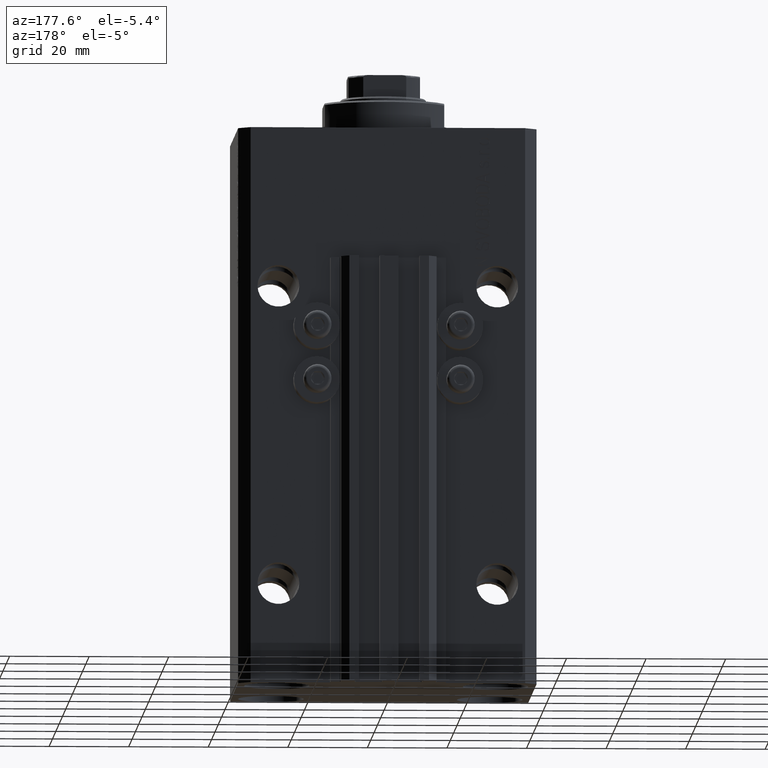
[diagram: clean part render]
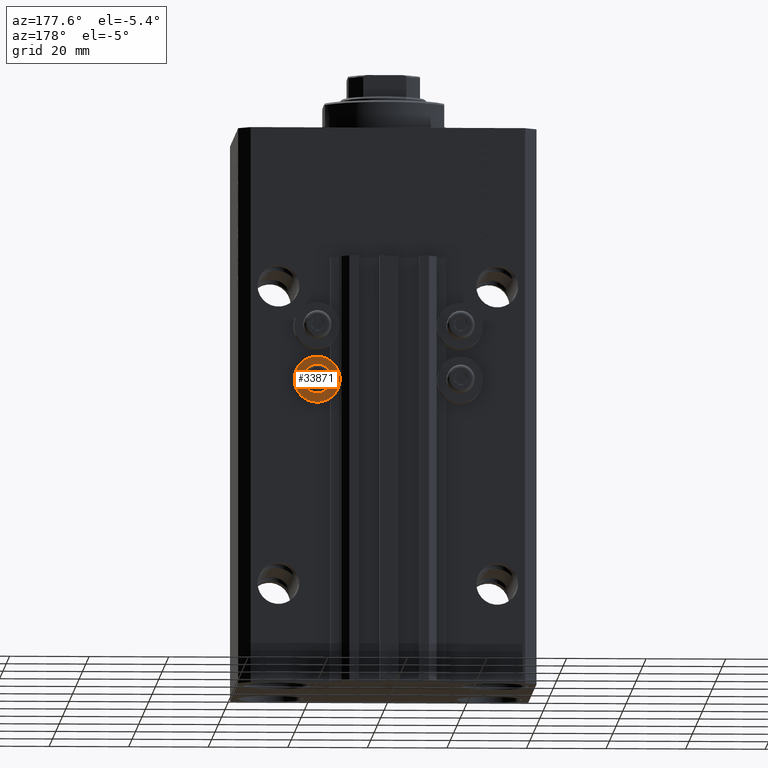
[diagram: same view with one face highlighted and labeled with its STEP entity id]
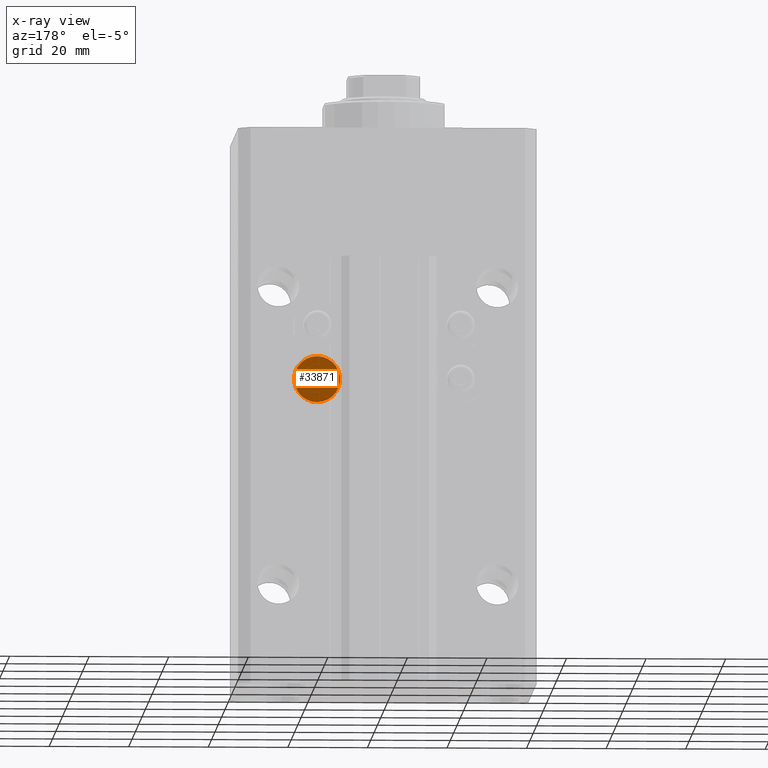
[diagram: x-ray of the same camera — body ghosted, the highlighted face saturated]
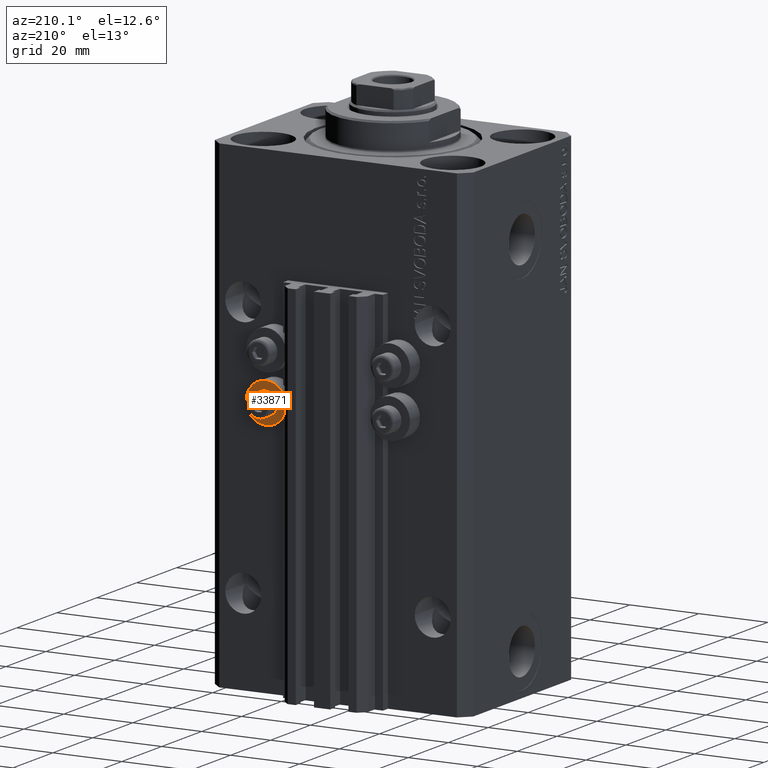
[diagram: same view with one face highlighted and labeled with its STEP entity id]
A machine part, auxiliary view. The second image highlights one B-rep face of the part: STEP entity #33871.
The next image is the same camera in x-ray: the body ghosted, the highlighted face saturated — about 0% of this face is hidden behind the body in this view.
A second angle (auxiliary view) of the same face is appended — the face is thin or edge-on in the first view.
In plain terms, the highlighted planar face has unit normal (0, -1, 0).
Its self-contained STEP definition (entity closure, byte-faithful):
#251 = EDGE_LOOP ( 'NONE', ( #36308, #22622 ) ) ;
#438 = FACE_BOUND ( 'NONE', #41692, .T. ) ;
#1389 = PLANE ( 'NONE',  #21298 ) ;
#2085 = AXIS2_PLACEMENT_3D ( 'NONE', #30526, #33866, #8931 ) ;
#4488 = CARTESIAN_POINT ( 'NONE',  ( 12.20000000000000284, 32.49999999996100541, -64.00000000000000000 ) ) ;
#4770 = VERTEX_POINT ( 'NONE', #45135 ) ;
#5238 = CARTESIAN_POINT ( 'NONE',  ( 18.00000000000000355, 32.49999999996100541, -64.00000000000000000 ) ) ;
#6059 = AXIS2_PLACEMENT_3D ( 'NONE', #8180, #23289, #26423 ) ;
#6657 = CIRCLE ( 'NONE', #2085, 2.000000000000001776 ) ;
#8180 = CARTESIAN_POINT ( 'NONE',  ( 18.00000000000000355, 32.49999999996100541, -64.00000000000000000 ) ) ;
#8931 = DIRECTION ( 'NONE',  ( 0.000000000000000000, 0.000000000000000000, -1.000000000000000000 ) ) ;
#13128 = DIRECTION ( 'NONE',  ( 0.000000000000000000, 1.000000000000000000, 0.000000000000000000 ) ) ;
#15988 = EDGE_CURVE ( 'NONE', #4770, #38642, #29258, .T. ) ;
#17347 = ORIENTED_EDGE ( 'NONE', *, *, #30965, .F. ) ;
#19097 = DIRECTION ( 'NONE',  ( -0.000000000000000000, 0.000000000000000000, 1.000000000000000000 ) ) ;
#19345 = DIRECTION ( 'NONE',  ( 0.000000000000000000, -1.000000000000000000, 0.000000000000000000 ) ) ;
#19697 = CARTESIAN_POINT ( 'NONE',  ( 18.00000000000000355, 32.49999999996100541, -64.00000000000000000 ) ) ;
#20436 = VERTEX_POINT ( 'NONE', #26274 ) ;
#21156 = ORIENTED_EDGE ( 'NONE', *, *, #43731, .F. ) ;
#21298 = AXIS2_PLACEMENT_3D ( 'NONE', #4488, #19345, #19097 ) ;
#22622 = ORIENTED_EDGE ( 'NONE', *, *, #38765, .T. ) ;
#23289 = DIRECTION ( 'NONE',  ( 0.000000000000000000, 1.000000000000000000, 0.000000000000000000 ) ) ;
#26274 = CARTESIAN_POINT ( 'NONE',  ( 18.00000000000000355, 32.49999999996100541, -62.00000000000000000 ) ) ;
#26344 = CARTESIAN_POINT ( 'NONE',  ( 18.00000000000000355, 32.49999999996100541, -66.00000000000000000 ) ) ;
#26423 = DIRECTION ( 'NONE',  ( 0.000000000000000000, 0.000000000000000000, -1.000000000000000000 ) ) ;
#26553 = FACE_OUTER_BOUND ( 'NONE', #251, .T. ) ;
#27364 = DIRECTION ( 'NONE',  ( 0.000000000000000000, 1.000000000000000000, 0.000000000000000000 ) ) ;
#29232 = CIRCLE ( 'NONE', #43727, 2.000000000000001776 ) ;
#29258 = CIRCLE ( 'NONE', #32296, 5.799999999999999822 ) ;
#30526 = CARTESIAN_POINT ( 'NONE',  ( 18.00000000000000355, 32.49999999996100541, -64.00000000000000000 ) ) ;
#30965 = EDGE_CURVE ( 'NONE', #20436, #35411, #6657, .T. ) ;
#32296 = AXIS2_PLACEMENT_3D ( 'NONE', #19697, #27364, #41700 ) ;
#33866 = DIRECTION ( 'NONE',  ( 0.000000000000000000, 1.000000000000000000, 0.000000000000000000 ) ) ;
#33871 = ADVANCED_FACE ( 'NONE', ( #438, #26553 ), #1389, .F. ) ;
#35411 = VERTEX_POINT ( 'NONE', #26344 ) ;
#36308 = ORIENTED_EDGE ( 'NONE', *, *, #15988, .T. ) ;
#36696 = CARTESIAN_POINT ( 'NONE',  ( 18.00000000000000355, 32.49999999996100541, -58.20000000000000284 ) ) ;
#38642 = VERTEX_POINT ( 'NONE', #36696 ) ;
#38748 = DIRECTION ( 'NONE',  ( 0.000000000000000000, 0.000000000000000000, -1.000000000000000000 ) ) ;
#38765 = EDGE_CURVE ( 'NONE', #38642, #4770, #47354, .T. ) ;
#41692 = EDGE_LOOP ( 'NONE', ( #17347, #21156 ) ) ;
#41700 = DIRECTION ( 'NONE',  ( 0.000000000000000000, 0.000000000000000000, -1.000000000000000000 ) ) ;
#43727 = AXIS2_PLACEMENT_3D ( 'NONE', #5238, #13128, #38748 ) ;
#43731 = EDGE_CURVE ( 'NONE', #35411, #20436, #29232, .T. ) ;
#45135 = CARTESIAN_POINT ( 'NONE',  ( 18.00000000000000355, 32.49999999996100541, -69.79999999999999716 ) ) ;
#47354 = CIRCLE ( 'NONE', #6059, 5.799999999999999822 ) ;